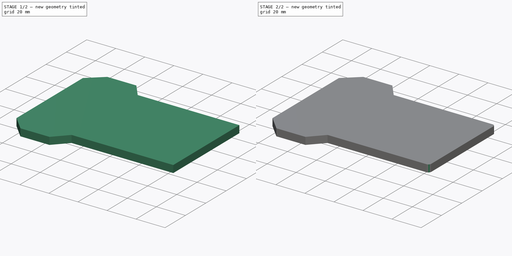
[diagram: build sequence overview — one tinted view per stage of 2, left to right]
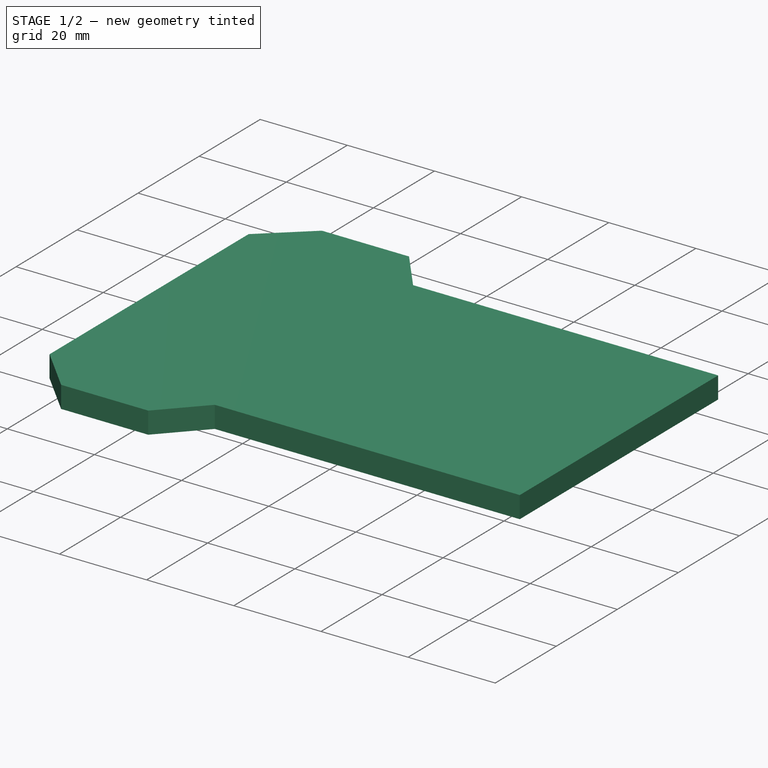
[diagram: stage 1 of 2 — iso view after this stage's code; geometry added in this stage tinted green]
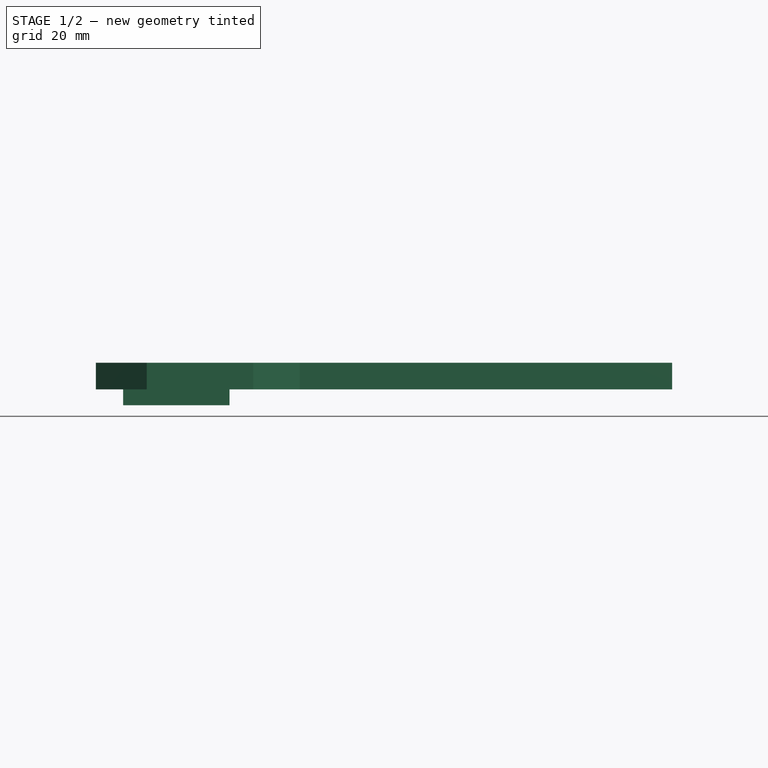
[diagram: stage 1 of 2 — front view after this stage's code; geometry added in this stage tinted green]
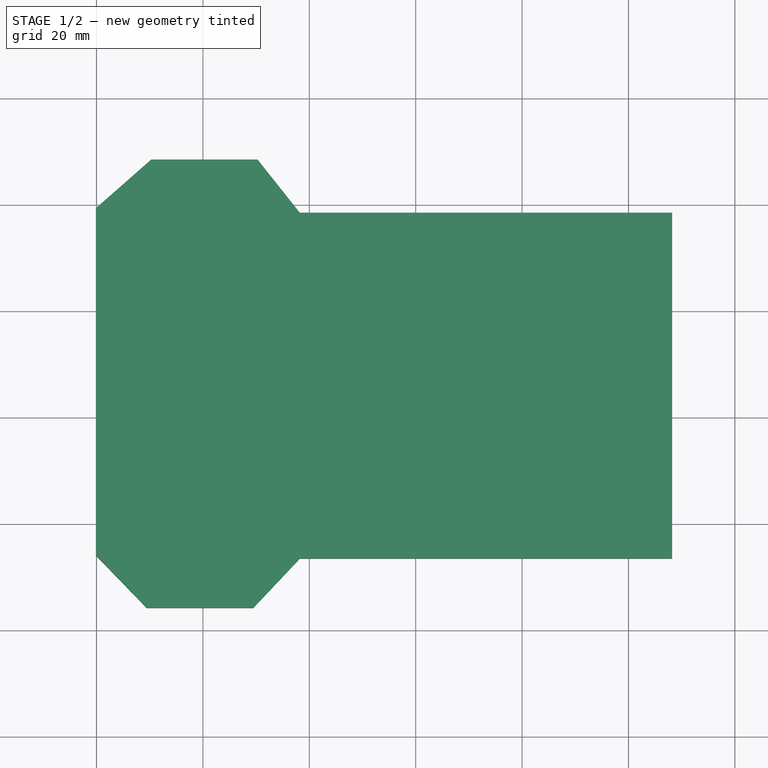
[diagram: stage 1 of 2 — top view after this stage's code; geometry added in this stage tinted green]
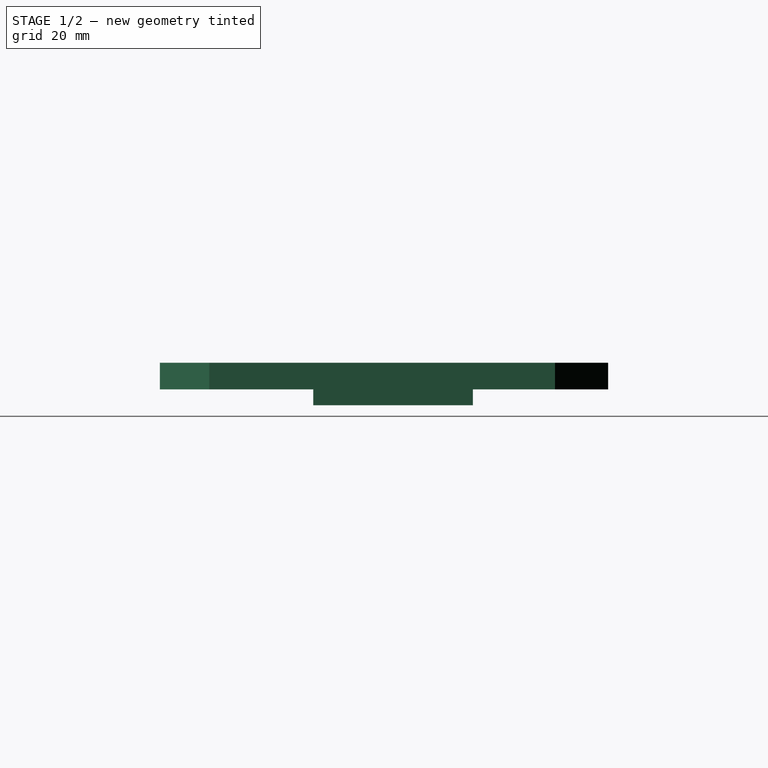
[diagram: stage 1 of 2 — right view after this stage's code; geometry added in this stage tinted green]
FCSTD DOCUMENT  (FreeCAD 0.16R6704 (Git))
Label: nuevo chasis perfecto
License: All rights reserved
LicenseURL: http://en.wikipedia.org/wiki/All_rights_reserved
objects: Sketcher::SketchObject×1, PartDesign::Pad×1, Part::Box×1, Part::MultiFuse×1, Part::Fillet×1
note: 6 computed .brp shape members not serialized (recipe doc carries the construction recipe); baked Part::Feature solids carry a one-line shape summary decoded from their .brp

FEATURE [Sketcher::SketchObject] Sketch
  sketch-geometry (10):
    g0: LineSegment StartX=48.2144 StartY=18.4402 StartZ=0 EndX=48.2144 EndY=-46.5598 EndZ=0
    g1: LineSegment StartX=48.2144 StartY=18.4402 StartZ=0 EndX=-21.7856 EndY=18.4402 EndZ=0
    g2: LineSegment StartX=48.2144 StartY=-46.5598 StartZ=0 EndX=-21.7856 EndY=-46.5598 EndZ=0
    g3: LineSegment StartX=-21.7856 StartY=18.4402 StartZ=0 EndX=-29.7202 EndY=28.4402 EndZ=0
    g4: LineSegment StartX=-29.7202 StartY=28.4402 StartZ=0 EndX=-49.7202 EndY=28.4402 EndZ=0
    g5: LineSegment StartX=-49.7202 StartY=28.4402 StartZ=0 EndX=-60.1309 EndY=19.2873 EndZ=0
    g6: LineSegment StartX=-21.7856 StartY=-46.5598 StartZ=0 EndX=-30.5481 EndY=-55.8428 EndZ=0
    g7: LineSegment StartX=-30.5481 StartY=-55.8428 StartZ=0 EndX=-50.5481 EndY=-55.8428 EndZ=0
    g8: LineSegment StartX=-50.5481 StartY=-55.8428 StartZ=0 EndX=-60.1309 EndY=-45.9491 EndZ=0
    g9: LineSegment StartX=-60.1309 StartY=19.2873 StartZ=0 EndX=-60.1309 EndY=-45.9491 EndZ=0
  constraints (23):
    c: Vertical(g0)
    c: DistanceY(g0,g0) = 65
    c: Coincident(g0,g1)
    c: Horizontal(g1)
    c: Coincident(g2,g0)
    c: Horizontal(g2)
    c: DistanceX(g1,g0) = 70
    c: Equal(g1,g2)
    c: Coincident(g3,g1)
    c: Coincident(g3,g4)
    c: Horizontal(g4)
    c: Coincident(g4,g5)
    c: Coincident(g6,g2)
    c: Coincident(g7,g6)
    c: Horizontal(g7)
    c: Coincident(g8,g7)
    c: DistanceX(g4,g4) = 20
    c: Equal(g4,g7)
    c: DistanceY(g3,g3) = 10
    c: Equal(g3,g6)
    c: Coincident(g9,g5)
    c: Coincident(g9,g8)
    c: Vertical(g9)
FEATURE [PartDesign::Pad] Pad
  Length = 5
  Length2 = 100
  Sketch = -> Sketch
  Type = 0
FEATURE [Part::Box] Box  label="Cubo"
  Height = 3
  Length = 20
  Placement = pos=(-55,-27,-3) rot=(0,0,1;0rad)
  Width = 30
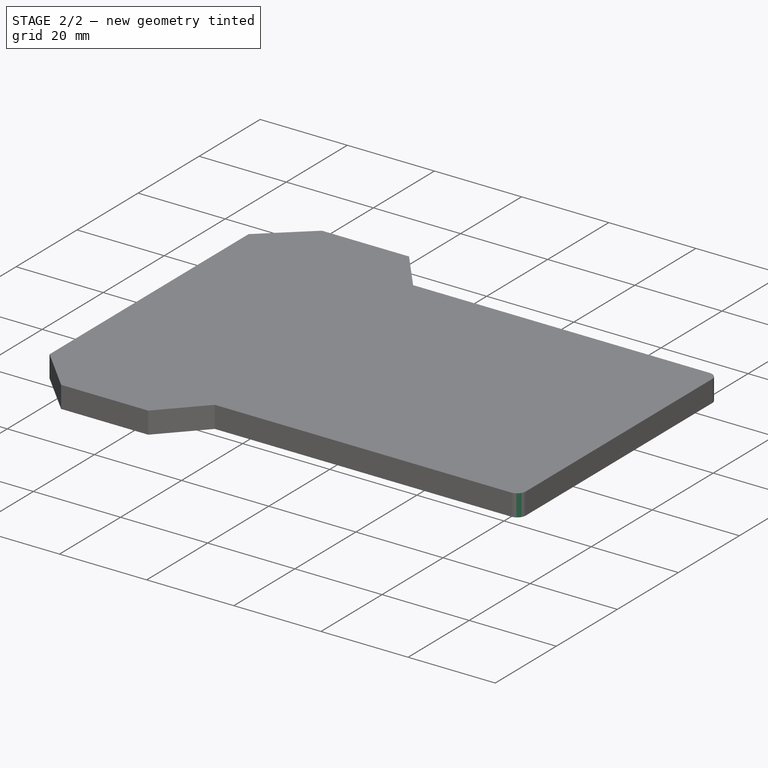
[diagram: stage 2 of 2 — iso view after this stage's code; geometry added in this stage tinted green]
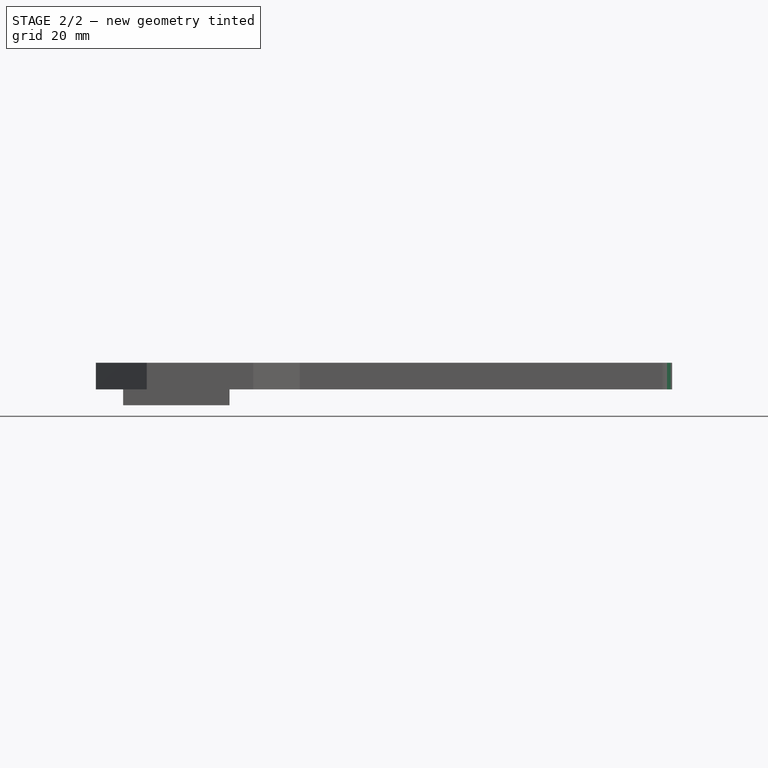
[diagram: stage 2 of 2 — front view after this stage's code; geometry added in this stage tinted green]
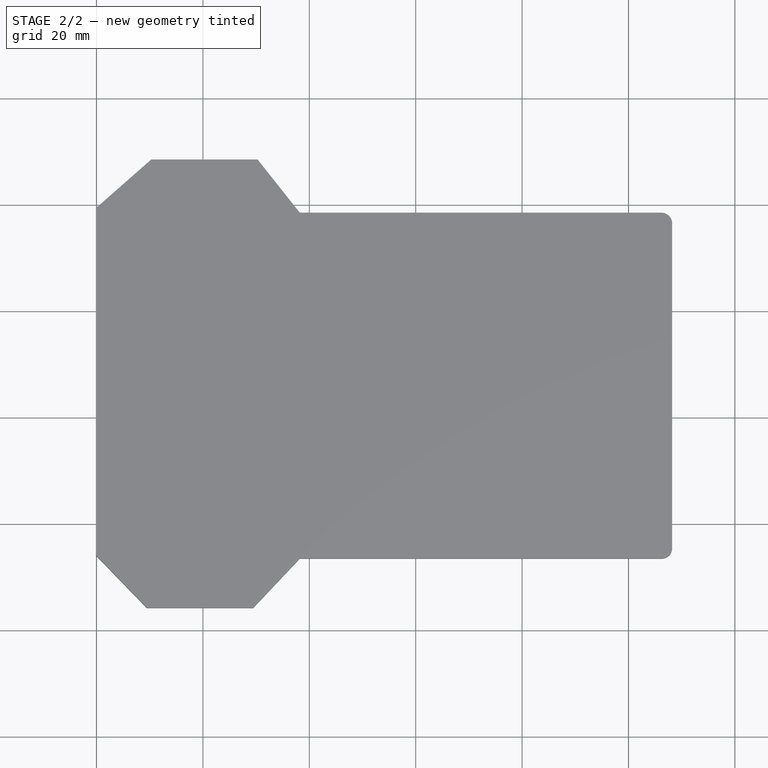
[diagram: stage 2 of 2 — top view after this stage's code; geometry added in this stage tinted green]
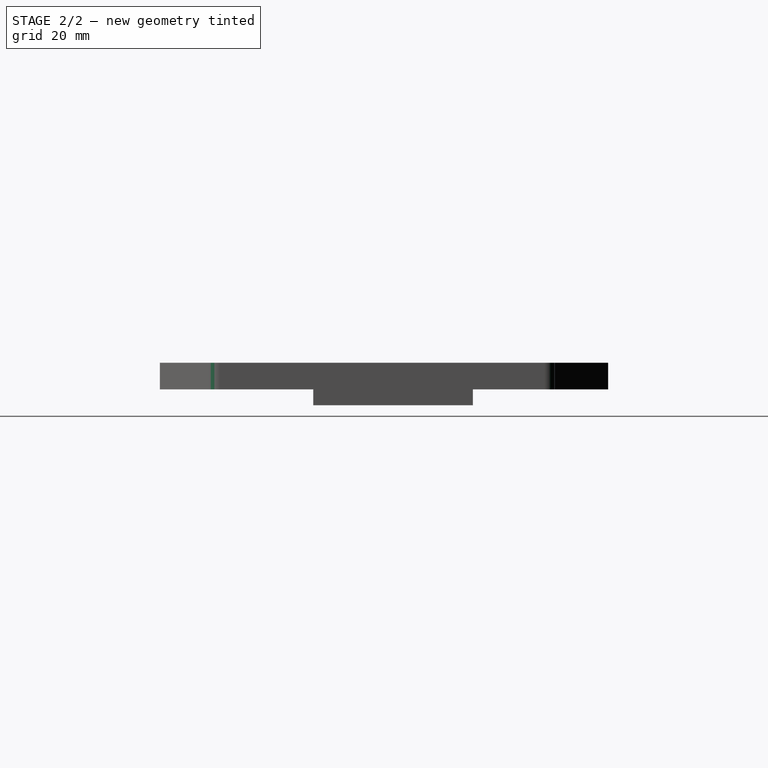
[diagram: stage 2 of 2 — right view after this stage's code; geometry added in this stage tinted green]
FEATURE [Part::MultiFuse] Fusion
  Shapes = -> [Pad,Box]
FEATURE [Part::Fillet] Fillet
  Base = -> Fusion
  Edges = 2 edges r=2: [Edge1,Edge2]
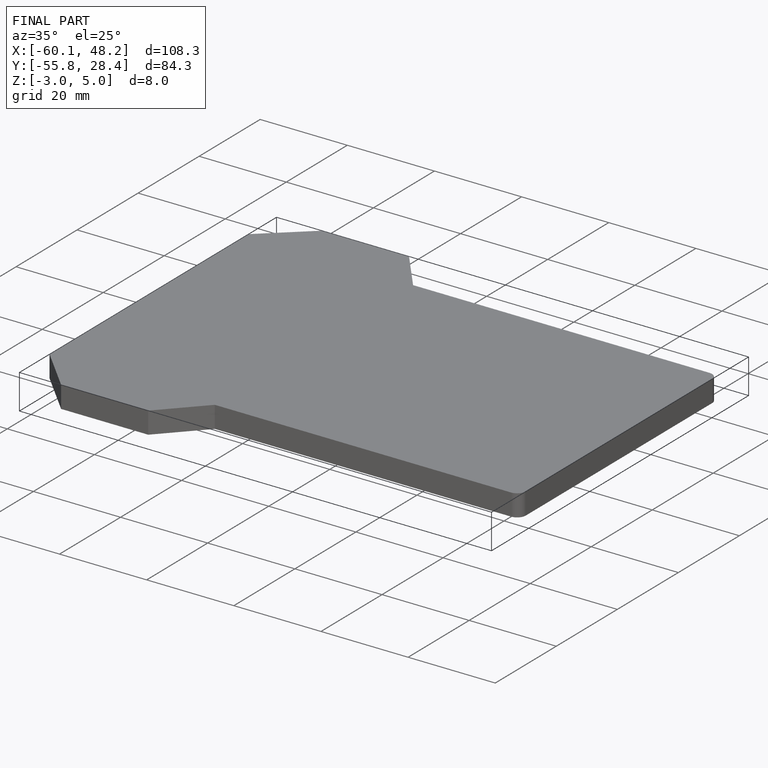
[diagram: finished part — iso view with bounding-box wireframe]
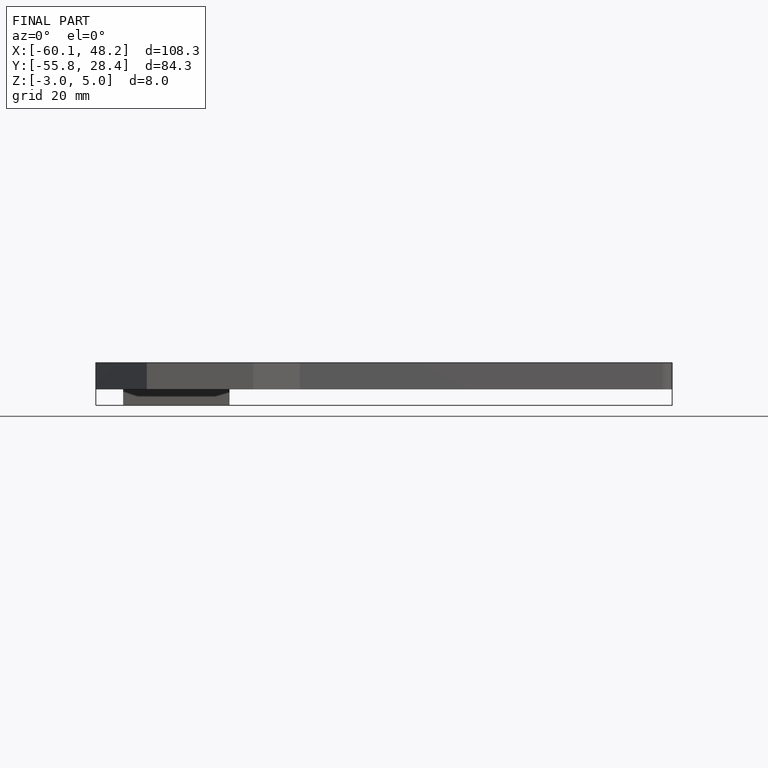
[diagram: finished part — front view with bounding-box wireframe]
